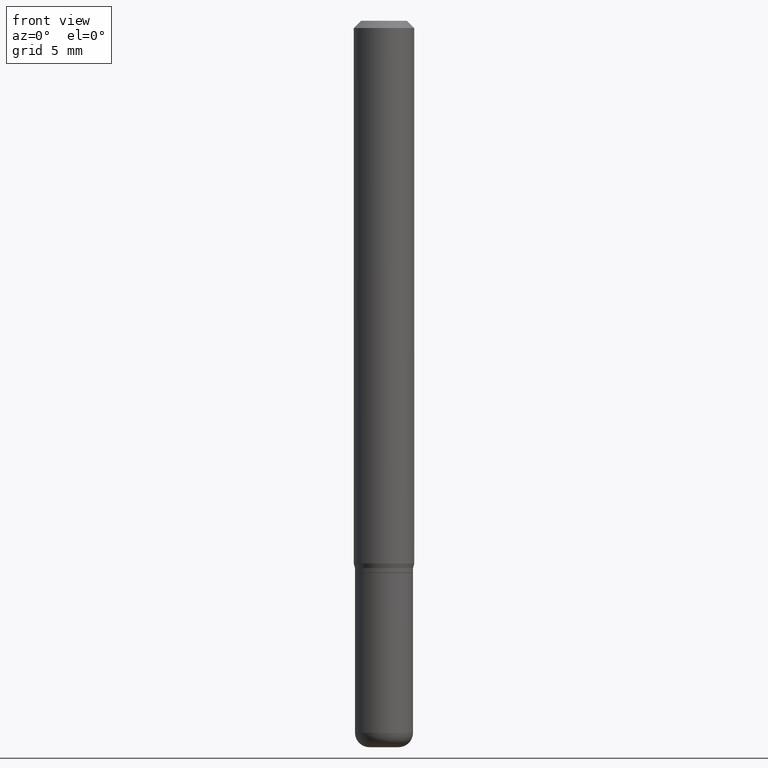
[diagram: clean part render]
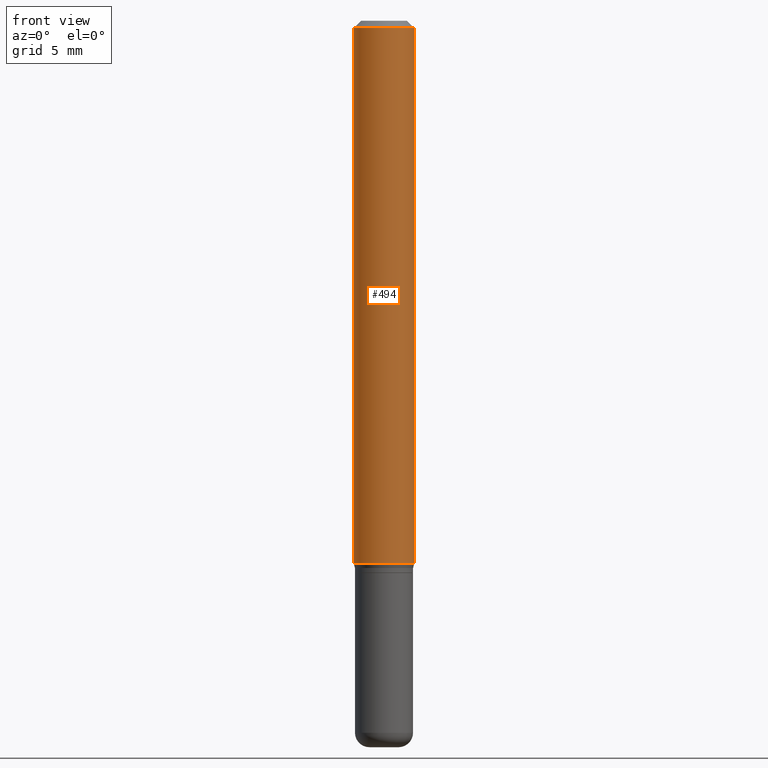
[diagram: same view with one face highlighted and labeled with its STEP entity id]
A machine part, front view. The second image highlights one B-rep face of the part: STEP entity #494.
In plain terms, the highlighted cylindrical surface (edge-blend (fillet) strip) has radius 1.5875 mm, axis along (-0, 0, 1).
Its self-contained STEP definition (entity closure, byte-faithful):
#6 = AXIS2_PLACEMENT_3D ( 'NONE', #117, #483, #229 ) ;
#20 = EDGE_CURVE ( 'NONE', #300, #424, #265, .T. ) ;
#44 = AXIS2_PLACEMENT_3D ( 'NONE', #465, #105, #350 ) ;
#74 = DIRECTION ( 'NONE',  ( 1.000000000000000000, -6.982962677686270655E-15, 0.000000000000000000 ) ) ;
#85 = EDGE_CURVE ( 'NONE', #424, #226, #131, .T. ) ;
#105 = DIRECTION ( 'NONE',  ( -2.445468806185136597E-29, 3.491481338843145583E-15, 1.000000000000000000 ) ) ;
#117 = CARTESIAN_POINT ( 'NONE',  ( 3.668203209277632395E-31, -5.237222008264614861E-17, -0.01499999999999970281 ) ) ;
#122 = VERTEX_POINT ( 'NONE', #239 ) ;
#131 = CIRCLE ( 'NONE', #6, 0.06250000000000000000 ) ;
#139 = DIRECTION ( 'NONE',  ( -2.445468806185136877E-29, 3.491481338843145188E-15, 1.000000000000000000 ) ) ;
#143 = FACE_OUTER_BOUND ( 'NONE', #307, .T. ) ;
#150 = EDGE_CURVE ( 'NONE', #300, #122, #176, .T. ) ;
#173 = ORIENTED_EDGE ( 'NONE', *, *, #150, .T. ) ;
#176 = CIRCLE ( 'NONE', #516, 0.06250000000000000000 ) ;
#186 = EDGE_CURVE ( 'NONE', #122, #226, #321, .T. ) ;
#189 = CARTESIAN_POINT ( 'NONE',  ( 0.06250000000000000000, -4.888073874380378612E-16, -0.01499999999999970281 ) ) ;
#193 = CARTESIAN_POINT ( 'NONE',  ( 0.06250000000000000000, -4.364351673553916694E-16, 3.047610484872459871E-30 ) ) ;
#204 = VECTOR ( 'NONE', #358, 39.37007874015748143 ) ;
#226 = VERTEX_POINT ( 'NONE', #189 ) ;
#227 = DIRECTION ( 'NONE',  ( -2.445468806185136597E-29, 3.491481338843145583E-15, 1.000000000000000000 ) ) ;
#229 = DIRECTION ( 'NONE',  ( 1.000000000000000000, -6.982962677686266711E-15, 0.000000000000000000 ) ) ;
#239 = CARTESIAN_POINT ( 'NONE',  ( 0.06250000000000000000, -4.349233115872544950E-15, -1.120669872981078452 ) ) ;
#265 = LINE ( 'NONE', #386, #420 ) ;
#298 = ORIENTED_EDGE ( 'NONE', *, *, #85, .F. ) ;
#300 = VERTEX_POINT ( 'NONE', #373 ) ;
#307 = EDGE_LOOP ( 'NONE', ( #311, #173, #338, #298 ) ) ;
#311 = ORIENTED_EDGE ( 'NONE', *, *, #20, .F. ) ;
#321 = LINE ( 'NONE', #193, #204 ) ;
#338 = ORIENTED_EDGE ( 'NONE', *, *, #186, .T. ) ;
#350 = DIRECTION ( 'NONE',  ( 1.000000000000000000, -6.982962677686266711E-15, 4.876176775795935793E-29 ) ) ;
#354 = CYLINDRICAL_SURFACE ( 'NONE', #44, 0.06250000000000000000 ) ;
#358 = DIRECTION ( 'NONE',  ( -2.445468806185136877E-29, 3.491481338843145188E-15, 1.000000000000000000 ) ) ;
#363 = CARTESIAN_POINT ( 'NONE',  ( 2.740563216406686274E-29, -3.912797948517153280E-15, -1.120669872981078452 ) ) ;
#373 = CARTESIAN_POINT ( 'NONE',  ( -0.06250000000000000000, -3.468708738667090664E-15, -1.120669872981078452 ) ) ;
#380 = CARTESIAN_POINT ( 'NONE',  ( -0.06250000000000000000, -1.538495874449837169E-15, -0.01499999999999970281 ) ) ;
#386 = CARTESIAN_POINT ( 'NONE',  ( -0.06250000000000000000, 4.440892098500626162E-16, -3.074334431409316114E-30 ) ) ;
#420 = VECTOR ( 'NONE', #139, 39.37007874015748143 ) ;
#424 = VERTEX_POINT ( 'NONE', #380 ) ;
#465 = CARTESIAN_POINT ( 'NONE',  ( 0.000000000000000000, 0.000000000000000000, 0.000000000000000000 ) ) ;
#483 = DIRECTION ( 'NONE',  ( -2.445468806185136597E-29, 3.491481338843145583E-15, 1.000000000000000000 ) ) ;
#494 = ADVANCED_FACE ( 'NONE', ( #143 ), #354, .T. ) ;
#516 = AXIS2_PLACEMENT_3D ( 'NONE', #363, #227, #74 ) ;